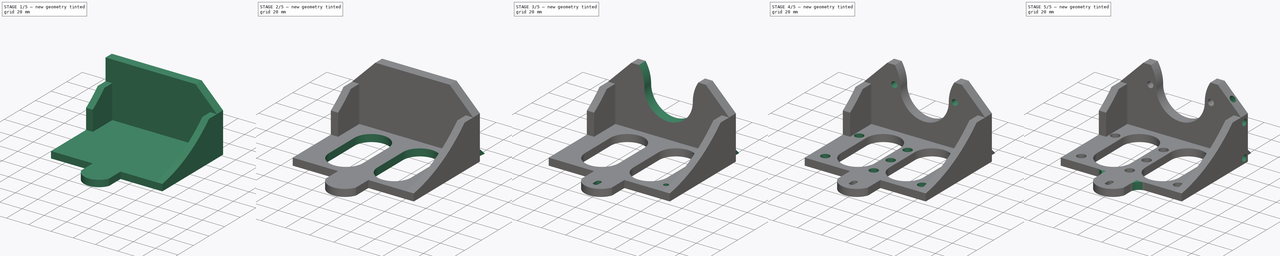
[diagram: build sequence overview — one tinted view per stage of 5, left to right]
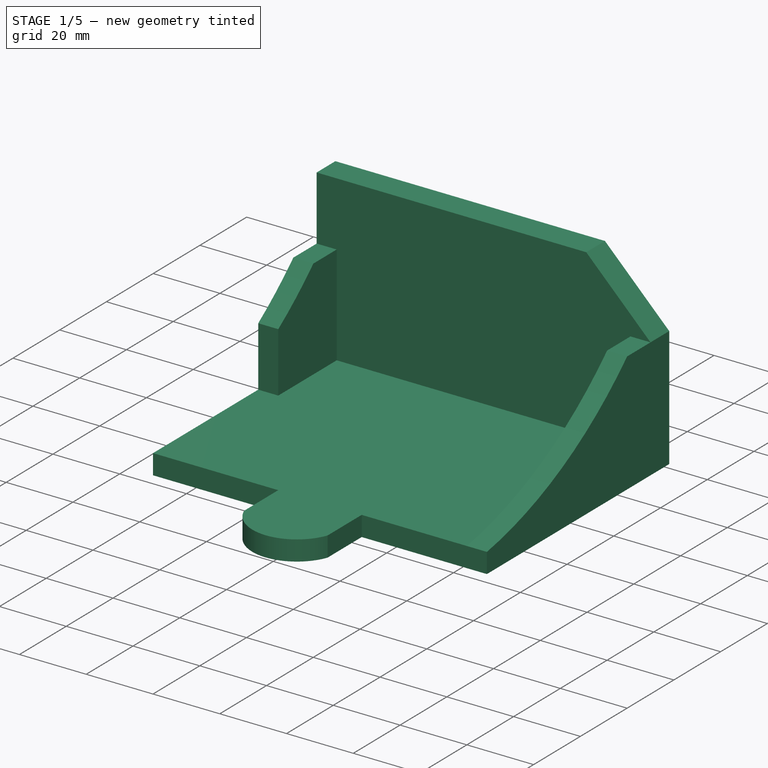
[diagram: stage 1 of 5 — iso view after this stage's code; geometry added in this stage tinted green]
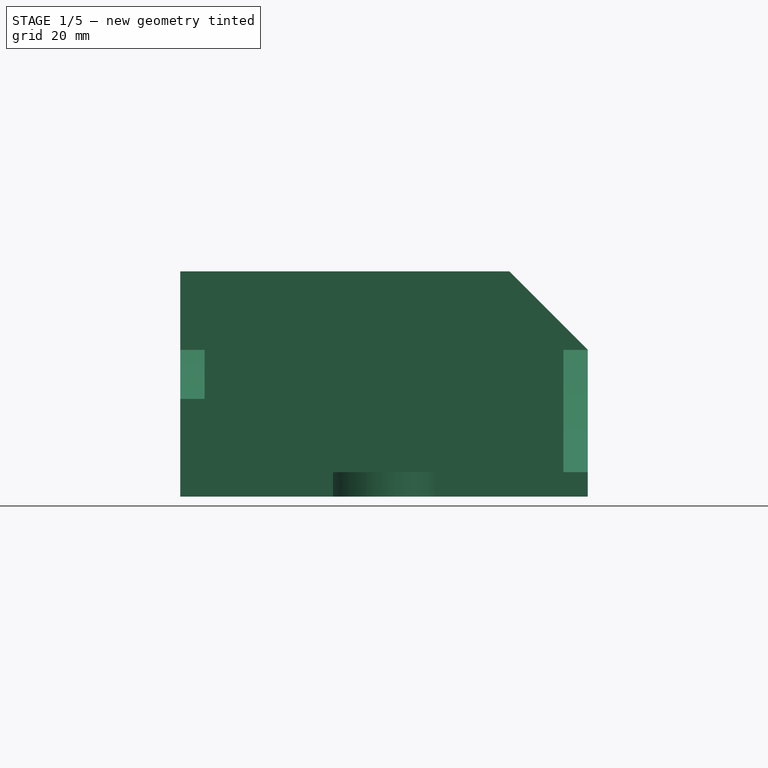
[diagram: stage 1 of 5 — front view after this stage's code; geometry added in this stage tinted green]
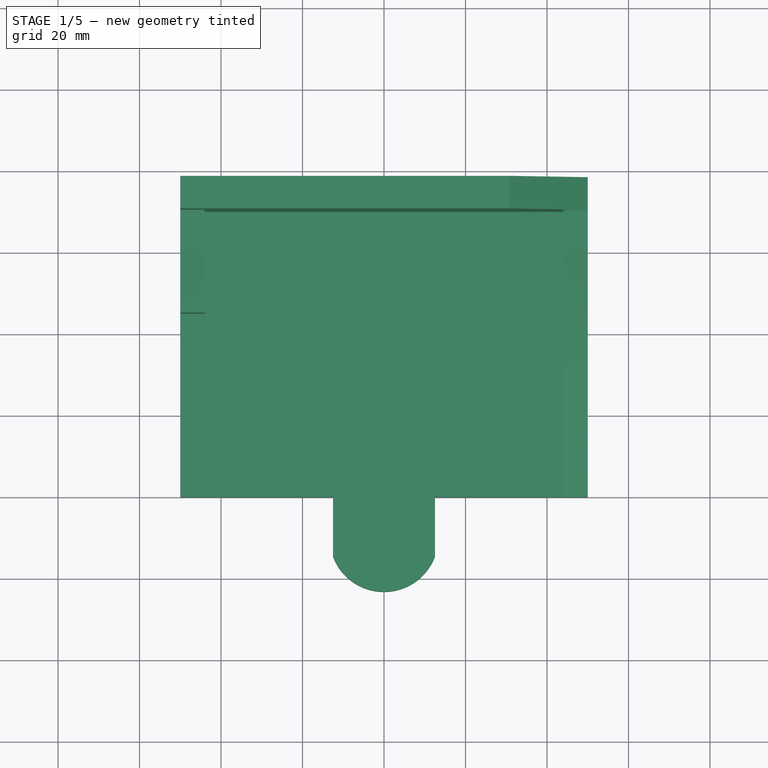
[diagram: stage 1 of 5 — top view after this stage's code; geometry added in this stage tinted green]
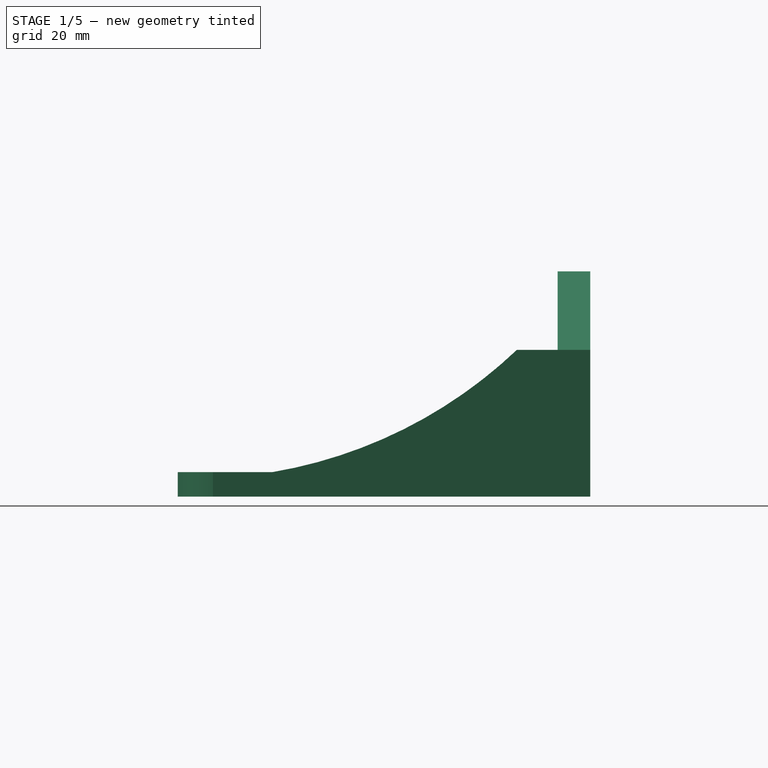
[diagram: stage 1 of 5 — right view after this stage's code; geometry added in this stage tinted green]
FCSTD DOCUMENT
Label: X_SingleExtruderMount
objects: Sketcher::SketchObject×20, PartDesign::Pocket×17, PartDesign::Mirrored×5, PartDesign::LinearPattern×4, PartDesign::Pad×3, PartDesign::MultiTransform×2, PartDesign::Fillet×2, Part::Feature×1
note: 74 computed .brp shape members not serialized (recipe doc carries the construction recipe); baked Part::Feature solids carry a one-line shape summary decoded from their .brp

FEATURE [Sketcher::SketchObject] Sketch
  sketch-geometry (4):
    g0: LineSegment StartX=-50 StartY=0 StartZ=0 EndX=50 EndY=0 EndZ=0
    g1: LineSegment StartX=50 StartY=0 StartZ=0 EndX=50 EndY=78 EndZ=0
    g2: LineSegment StartX=50 StartY=78 StartZ=0 EndX=-50 EndY=78 EndZ=0
    g3: LineSegment StartX=-50 StartY=78 StartZ=0 EndX=-50 EndY=0 EndZ=0
  constraints (12):
    c: Coincident(g0,g1)
    c: Coincident(g1,g2)
    c: Coincident(g2,g3)
    c: Coincident(g3,g0)
    c: Horizontal(g0)
    c: Horizontal(g2)
    c: Vertical(g1)
    c: Vertical(g3)
    c: Symmetric(g2,g1,g-2)
    c: PointOnObject(g0,g-1)
    c: DistanceX(g0) = 100
    c: DistanceY(g1) = 78
FEATURE [PartDesign::Pad] Pad
  Length = 55.25
  Length2 = 100
  Sketch = -> Sketch
  Type = 0
FEATURE [Sketcher::SketchObject] Sketch001
  ExternalGeometry = -> [Pad]
  Placement = pos=(0,0,0) rot=(1,0,0;1.5708rad)
  Support = -> Pad [Face1]
  sketch-geometry (8):
    g0: LineSegment StartX=44 StartY=36 StartZ=0 EndX=44 EndY=6 EndZ=0
    g1: LineSegment StartX=44 StartY=6 StartZ=0 EndX=-44 EndY=6 EndZ=0
    g2: LineSegment StartX=-44 StartY=6 StartZ=0 EndX=-44 EndY=36 EndZ=0
    g3: LineSegment StartX=-51 StartY=56.25 StartZ=0 EndX=51 EndY=56.25 EndZ=0
    g4: LineSegment StartX=51 StartY=56.25 StartZ=0 EndX=51 EndY=36 EndZ=0
    g5: LineSegment StartX=51 StartY=36 StartZ=0 EndX=44 EndY=36 EndZ=0
    g6: LineSegment StartX=-51 StartY=36 StartZ=0 EndX=-51 EndY=56.25 EndZ=0
    g7: LineSegment StartX=-44 StartY=36 StartZ=0 EndX=-51 EndY=36 EndZ=0
  constraints (23):
    c: Coincident(g0,g1)
    c: Coincident(g1,g2)
    c: Horizontal(g1)
    c: Vertical(g0)
    c: Vertical(g2)
    c: Coincident(g3,g4)
    c: Coincident(g4,g5)
    c: Coincident(g7,g6)
    c: Coincident(g6,g3)
    c: Horizontal(g3)
    c: Horizontal(g5)
    c: Vertical(g4)
    c: Vertical(g6)
    c: Coincident(g5,g0)
    c: Coincident(g7,g2)
    c: Tangent(g5,g7)
    c: Equal(g7,g5)
    c: Symmetric(g0,g1,g-2)
    c: DistanceY(g0) = 6
    c: DistanceX(g0,g-3) = 6
    c: DistanceY(g4,g-3) = -36
    c: DistanceX(g-3,g3) = 1
    c: DistanceY(g-3,g3) = 1
FEATURE [PartDesign::Pocket] Pocket
  Length = 70
  Sketch = -> Sketch001
  Type = 0
FEATURE [Sketcher::SketchObject] Sketch002
  ExternalGeometry = -> [Pocket]
  Placement = pos=(50,0,0) rot=(0.57735,0.57735,0.57735;2.0944rad)
  Support = -> Pocket [Face2]
  sketch-geometry (5):
    g0: LineSegment StartX=60 StartY=38 StartZ=0 EndX=-2 EndY=38 EndZ=0
    g1: LineSegment StartX=-2 StartY=38 StartZ=0 EndX=-2 EndY=6 EndZ=0
    g2: LineSegment StartX=-2 StartY=6 StartZ=0 EndX=0 EndY=6 EndZ=0
    g3: LineSegment StartX=60 StartY=36 StartZ=0 EndX=60 EndY=38 EndZ=0
    g4: ArcOfCircle CenterX=-19.1935 CenterY=119.387 CenterZ=0 NormalX=0 NormalY=0 NormalZ=1 Radius=115 StartAngle=4.88007 EndAngle=5.472
  constraints (16):
    c: Coincident(g0,g1)
    c: Coincident(g1,g2)
    c: Coincident(g3,g0)
    c: Horizontal(g0)
    c: Horizontal(g2)
    c: Vertical(g1)
    c: Vertical(g3)
    c: Coincident(g2,g4)
    c: Coincident(g3,g4)
    c: PointOnObject(g3,g-3)
    c: PointOnObject(g2,g-2)
    c: DistanceY(g-1,g1) = 6
    c: DistanceX(g3,g-3) = 10
    c: Equal(g2,g3)
    c: DistanceX(g-3,g0) = -2
    c: Radius(g4) = 115
FEATURE [PartDesign::Pocket] Pocket001
  Length = 7
  Sketch = -> Sketch002
  Type = 1
FEATURE [Sketcher::SketchObject] Sketch003
  ExternalGeometry = -> [Pocket001]
  Placement = pos=(-50,0,0) rot=(0.57735,-0.57735,-0.57735;2.0944rad)
  Support = -> Pocket001 [Face3]
  sketch-geometry (4):
    g0: LineSegment StartX=-45 StartY=36 StartZ=0 EndX=0 EndY=36 EndZ=0
    g1: LineSegment StartX=0 StartY=36 StartZ=0 EndX=0 EndY=6 EndZ=0
    g2: LineSegment StartX=0 StartY=6 StartZ=0 EndX=-45 EndY=6 EndZ=0
    g3: LineSegment StartX=-45 StartY=6 StartZ=0 EndX=-45 EndY=36 EndZ=0
  constraints (11):
    c: Coincident(g0,g1)
    c: Coincident(g1,g2)
    c: Coincident(g2,g3)
    c: Coincident(g3,g0)
    c: Horizontal(g0)
    c: Horizontal(g2)
    c: Vertical(g1)
    c: Vertical(g3)
    c: Coincident(g-5,g1)
    c: PointOnObject(g0,g-4)
    c: DistanceX(g2) = -45
FEATURE [PartDesign::Pocket] Pocket002
  Length = 6
  Sketch = -> Sketch003
  Type = 0
FEATURE [Sketcher::SketchObject] Sketch004
  Placement = pos=(0,0,6) rot=(0,0,1;0rad)
  Support = -> Pocket002 [Face15]
  sketch-geometry (4):
    g0: LineSegment StartX=-12.5 StartY=0 StartZ=0 EndX=12.5 EndY=0 EndZ=0
    g1: LineSegment StartX=12.5 StartY=0 StartZ=0 EndX=12.5 EndY=-14.6 EndZ=0
    g2: LineSegment StartX=-12.5 StartY=-14.6 StartZ=0 EndX=-12.5 EndY=0 EndZ=0
    g3: ArcOfCircle CenterX=0 CenterY=-9.83897 CenterZ=0 NormalX=0 NormalY=0 NormalZ=1 Radius=13.376 StartAngle=3.50551 EndAngle=5.91927
  constraints (13):
    c: Coincident(g0,g1)
    c: Coincident(g2,g0)
    c: Horizontal(g0)
    c: Vertical(g1)
    c: Vertical(g2)
    c: Symmetric(g2,g1,g-2)
    c: PointOnObject(g0,g-1)
    c: PointOnObject(g3,g-2)
    c: Coincident(g3,g2)
    c: Coincident(g3,g1)
    c: DistanceX(g0) = 25
    c: DistanceY(g1) = -14.6
    c: Radius(g3) = 13.376
FEATURE [PartDesign::Pad] Pad001
  Length = 10
  Length2 = 100
  Reversed = true
  Sketch = -> Sketch004
  Type = 3
  UpToFace = -> Pocket002 [Face4]
FEATURE [Sketcher::SketchObject] Sketch005
  ExternalGeometry = -> [Pad001]
  Placement = pos=(0,70,0) rot=(1,0,0;1.5708rad)
  Support = -> Pad001 [Face6]
  sketch-geometry (3):
    g0: LineSegment StartX=50 StartY=36 StartZ=0 EndX=29.75 EndY=56.25 EndZ=0
    g1: LineSegment StartX=29.75 StartY=56.25 StartZ=0 EndX=50 EndY=56.25 EndZ=0
    g2: LineSegment StartX=50 StartY=56.25 StartZ=0 EndX=50 EndY=36 EndZ=0
  constraints (8):
    c: Coincident(g0,g1)
    c: Horizontal(g1)
    c: Coincident(g1,g2)
    c: Coincident(g2,g0)
    c: Vertical(g2)
    c: Coincident(g0,g-3)
    c: Angle(g2,g0) = 0.785398
    c: DistanceY(g-4,g1) = 1
FEATURE [PartDesign::Pocket] Pocket003
  Length = 5
  Sketch = -> Sketch005
  Type = 1
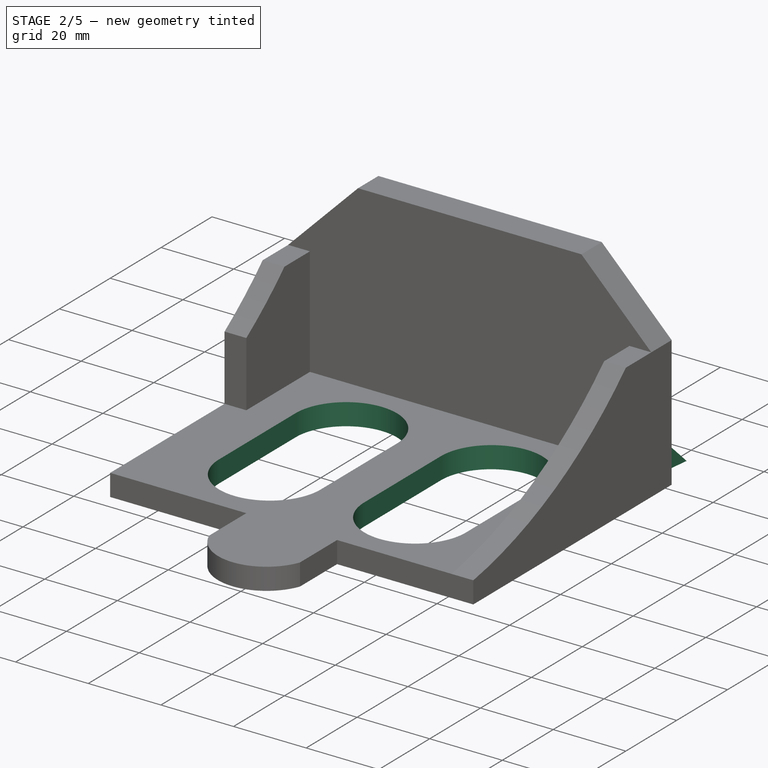
[diagram: stage 2 of 5 — iso view after this stage's code; geometry added in this stage tinted green]
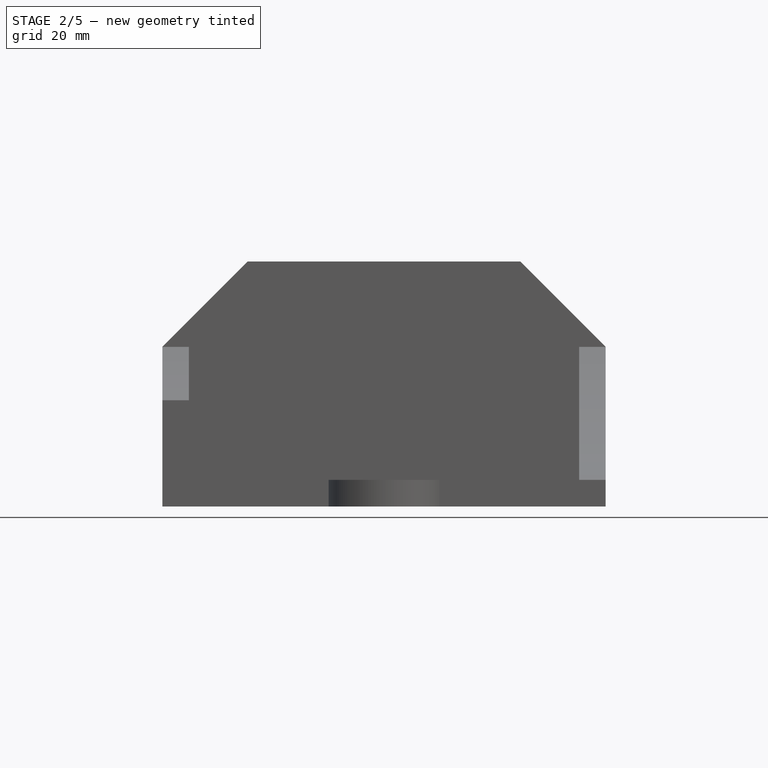
[diagram: stage 2 of 5 — front view after this stage's code; geometry added in this stage tinted green]
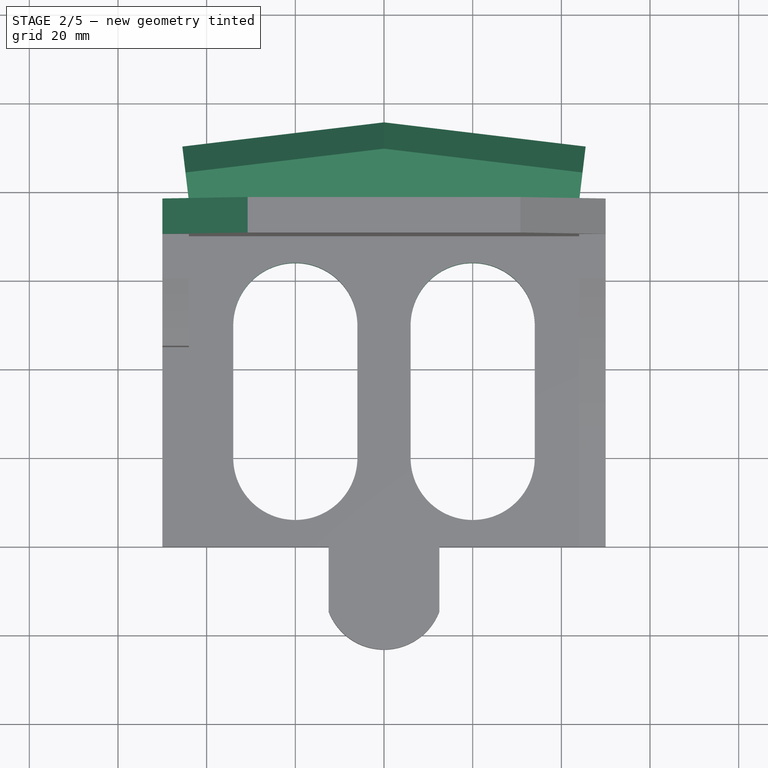
[diagram: stage 2 of 5 — top view after this stage's code; geometry added in this stage tinted green]
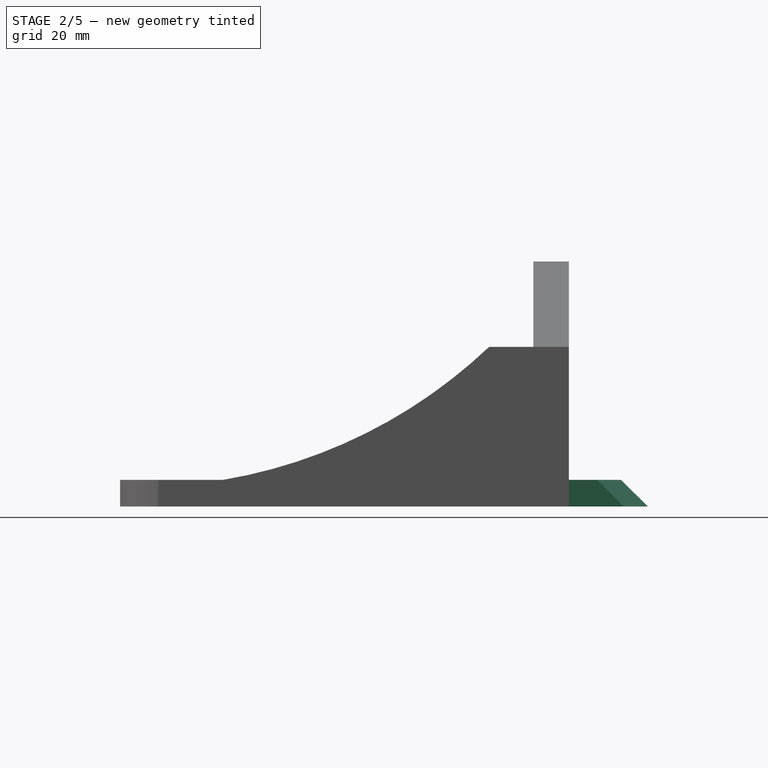
[diagram: stage 2 of 5 — right view after this stage's code; geometry added in this stage tinted green]
FEATURE [PartDesign::Mirrored] Mirrored
  Originals = -> [Pocket003]
  StdMirrorPlane = YZ
FEATURE [Sketcher::SketchObject] Sketch006
  ExternalGeometry = -> [Mirrored]
  Placement = pos=(0,0,6) rot=(0,0,1;0rad)
  Support = -> Mirrored [Face3]
  sketch-geometry (5):
    g0: LineSegment StartX=6 StartY=50 StartZ=0 EndX=6 EndY=20 EndZ=0
    g1: ArcOfCircle CenterX=20 CenterY=20 CenterZ=0 NormalX=0 NormalY=0 NormalZ=1 Radius=14 StartAngle=3.14159 EndAngle=6.28319
    g2: LineSegment StartX=34 StartY=20 StartZ=0 EndX=34 EndY=50 EndZ=0
    g3: ArcOfCircle CenterX=20 CenterY=50 CenterZ=0 NormalX=0 NormalY=0 NormalZ=1 Radius=14 StartAngle=0 EndAngle=3.14159
    g4: LineSegment [constr] StartX=20 StartY=20 StartZ=0 EndX=20 EndY=6 EndZ=0
  constraints (14):
    c: Vertical(g0)
    c: Tangent(g0,g1)
    c: Tangent(g1,g2)
    c: Tangent(g2,g3)
    c: Vertical(g2)
    c: Coincident(g3,g0)
    c: Tangent(g3,g0)
    c: Radius(g3) = 14
    c: DistanceY(g0) = -30
    c: Coincident(g4,g1)
    c: PointOnObject(g4,g1)
    c: Vertical(g4)
    c: DistanceY(g4,g-3) = -6
    c: DistanceX(g1,g-3) = 16
FEATURE [PartDesign::Pocket] Pocket004
  Length = 5
  Sketch = -> Sketch006
  Type = 1
FEATURE [PartDesign::Mirrored] Mirrored001
  Originals = -> [Pocket004]
  StdMirrorPlane = YZ
FEATURE [Sketcher::SketchObject] Sketch007
  ExternalGeometry = -> [Mirrored001]
  Placement = pos=(0,0,0) rot=(1,0,0;3.14159rad)
  Support = -> Mirrored001 [Face6]
  sketch-geometry (5):
    g0: LineSegment StartX=-44 StartY=-78 StartZ=0 EndX=44 EndY=-78 EndZ=0
    g1: LineSegment StartX=44 StartY=-78 StartZ=0 EndX=45.4811 EndY=-90.3421 EndZ=0
    g2: LineSegment StartX=45.4811 StartY=-90.3421 StartZ=0 EndX=0 EndY=-95.8 EndZ=0
    g3: LineSegment StartX=0 StartY=-95.8 StartZ=0 EndX=-45.4811 EndY=-90.3421 EndZ=0
    g4: LineSegment StartX=-45.4811 StartY=-90.3421 StartZ=0 EndX=-44 EndY=-78 EndZ=0
  constraints (13):
    c: Horizontal(g0)
    c: Coincident(g0,g1)
    c: Perpendicular(g1,g2)
    c: Coincident(g2,g3)
    c: Perpendicular(g3,g4)
    c: Coincident(g4,g0)
    c: Symmetric(g0,g0,g-2)
    c: PointOnObject(g2,g-2)
    c: PointOnObject(g-3,g0)
    c: DistanceX(g-3,g0) = 6
    c: DistanceY(g-3,g2) = -17.8
    c: Equal(g4,g1)
    c: Angle(g2,g3) = 2.90273
FEATURE [PartDesign::Pad] Pad002
  Length = 6
  Length2 = 100
  Reversed = true
  Sketch = -> Sketch007
  Type = 0
FEATURE [Sketcher::SketchObject] Sketch008
  ExternalGeometry = -> [Pad002]
  Placement = pos=(34.1479,-4.09789,0) rot=(0.623281,0.552956,0.552956;2.02687rad)
  Support = -> Pad002 [Face34]
  sketch-geometry (4):
    g0: LineSegment StartX=89.1176 StartY=6 StartZ=0 EndX=97.1176 EndY=6 EndZ=0
    g1: LineSegment StartX=97.1176 StartY=6 StartZ=0 EndX=97.1176 EndY=0 EndZ=0
    g2: LineSegment StartX=97.1176 StartY=0 StartZ=0 EndX=95.1176 EndY=0 EndZ=0
    g3: LineSegment StartX=89.1176 StartY=6 StartZ=0 EndX=95.1176 EndY=0 EndZ=0
  constraints (11):
    c: Coincident(g0,g1)
    c: Coincident(g1,g2)
    c: Horizontal(g0)
    c: Horizontal(g2)
    c: Vertical(g1)
    c: Coincident(g0,g3)
    c: Coincident(g2,g3)
    c: Coincident(g2,g-3)
    c: PointOnObject(g-3,g0)
    c: DistanceX(g2) = -2
    c: Angle(g-3,g3) = 0.785398
FEATURE [PartDesign::Pocket] Pocket005
  Length = 5
  Sketch = -> Sketch008
  Type = 1
FEATURE [PartDesign::Mirrored] Mirrored002
  Originals = -> [Pocket005]
  StdMirrorPlane = YZ
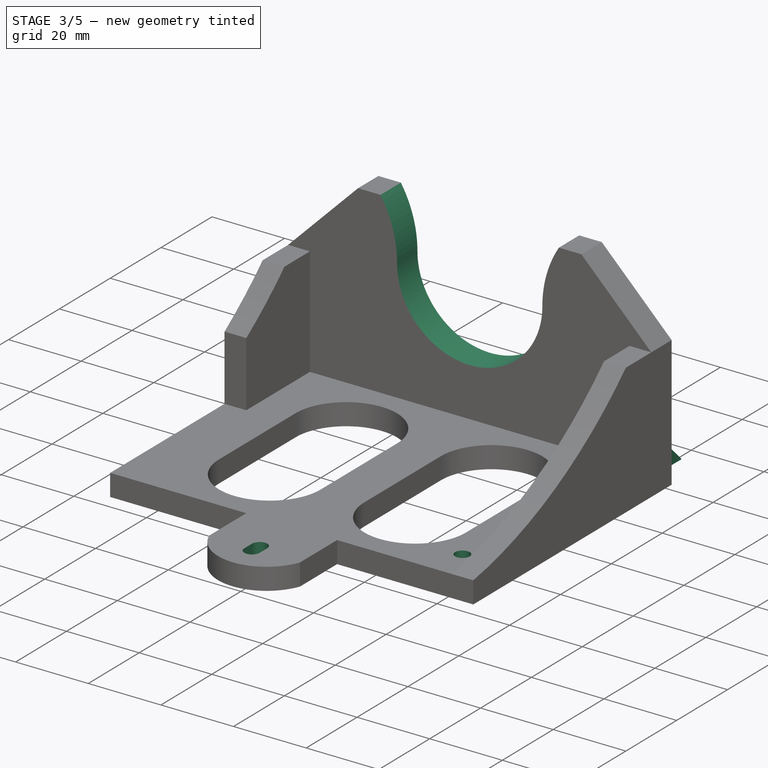
[diagram: stage 3 of 5 — iso view after this stage's code; geometry added in this stage tinted green]
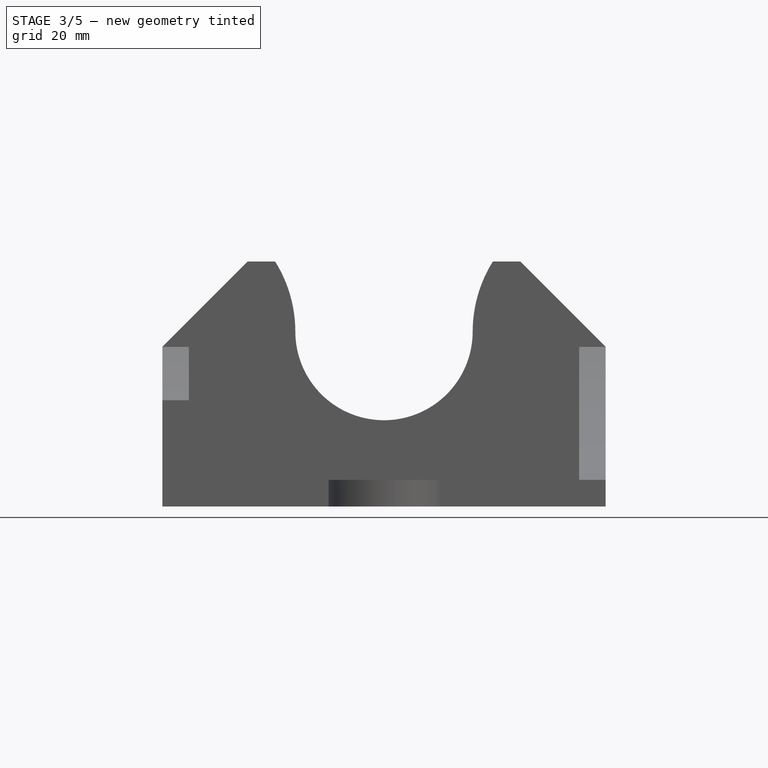
[diagram: stage 3 of 5 — front view after this stage's code; geometry added in this stage tinted green]
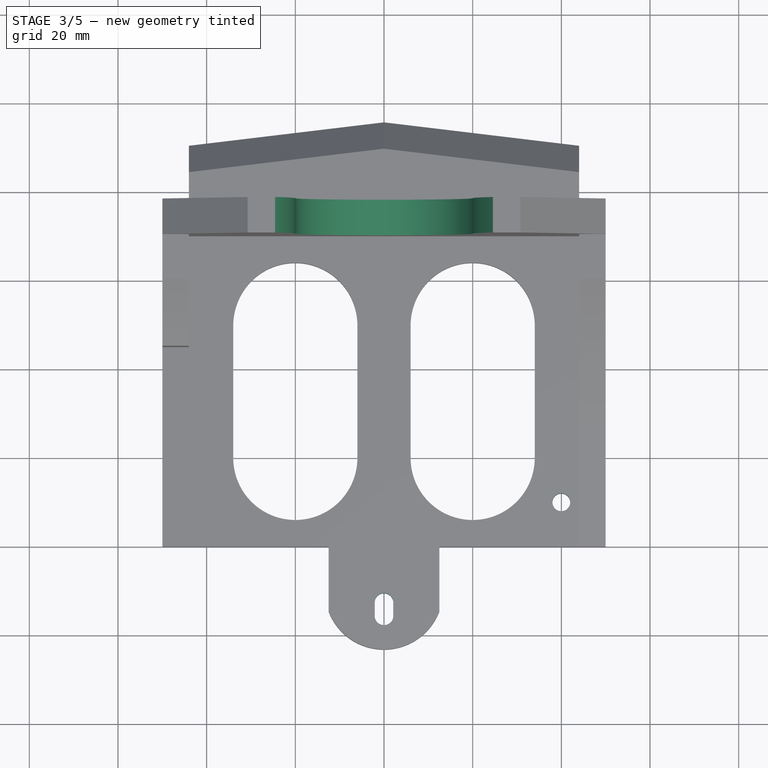
[diagram: stage 3 of 5 — top view after this stage's code; geometry added in this stage tinted green]
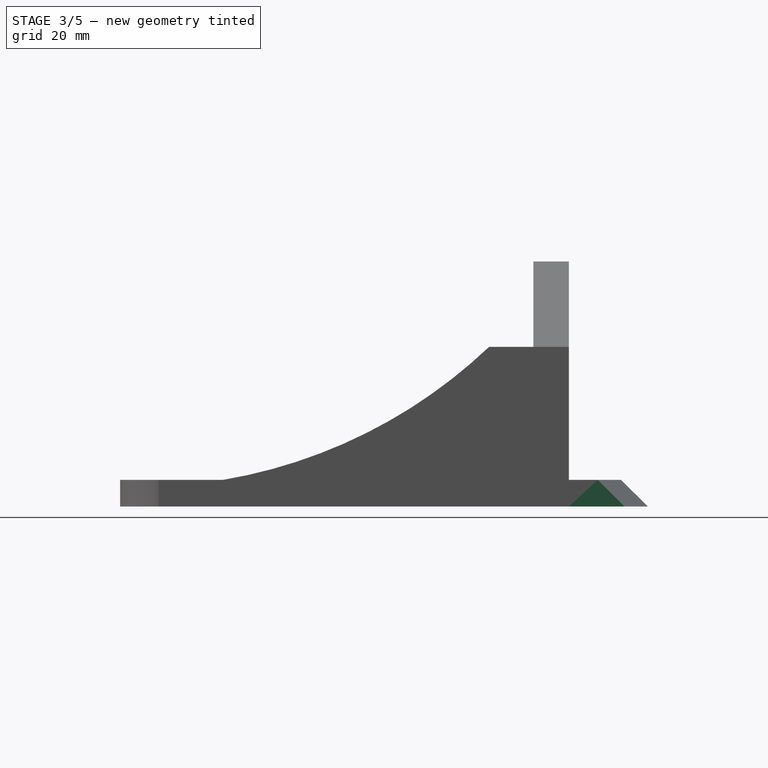
[diagram: stage 3 of 5 — right view after this stage's code; geometry added in this stage tinted green]
FEATURE [Sketcher::SketchObject] Sketch009
  ExternalGeometry = -> [Mirrored002]
  Placement = pos=(0,0,0) rot=(1,0,0;3.14159rad)
  Support = -> Mirrored002 [Face26]
  sketch-geometry (3):
    g0: LineSegment StartX=-44 StartY=-78 StartZ=0 EndX=-44 EndY=-93 EndZ=0
    g1: LineSegment StartX=-44 StartY=-93 StartZ=0 EndX=-45.8001 EndY=-93 EndZ=0
    g2: LineSegment StartX=-45.8001 StartY=-93 StartZ=0 EndX=-44 EndY=-78 EndZ=0
  constraints (8):
    c: Vertical(g0)
    c: Coincident(g0,g1)
    c: Horizontal(g1)
    c: Coincident(g1,g2)
    c: Coincident(g2,g0)
    c: Coincident(g0,g-3)
    c: DistanceY(g0) = -15
    c: PointOnObject(g-3,g2)
FEATURE [PartDesign::Pocket] Pocket006
  Length = 6
  Sketch = -> Sketch009
  Type = 0
FEATURE [PartDesign::Mirrored] Mirrored003
  Originals = -> [Pocket006]
  StdMirrorPlane = YZ
FEATURE [Sketcher::SketchObject] Sketch010
  ExternalGeometry = -> [Mirrored003]
  Placement = pos=(0,78,0) rot=(0,0.707107,0.707107;3.14159rad)
  Support = -> Mirrored003 [Face24]
  sketch-geometry (4):
    g0: ArcOfCircle CenterX=0 CenterY=39.453 CenterZ=0 NormalX=0 NormalY=0 NormalZ=1 Radius=20 StartAngle=3.14196 EndAngle=6.28282
    g1: ArcOfCircle CenterX=-49.76 CenterY=39.435 CenterZ=0 NormalX=0 NormalY=0 NormalZ=1 Radius=29.76 StartAngle=0.000360359 EndAngle=0.560273
    g2: ArcOfCircle CenterX=49.76 CenterY=39.435 CenterZ=0 NormalX=0 NormalY=0 NormalZ=1 Radius=29.76 StartAngle=2.58132 EndAngle=3.14123
    g3: LineSegment StartX=-24.55 StartY=55.25 StartZ=0 EndX=24.55 EndY=55.25 EndZ=0
  constraints (14):
    c: PointOnObject(g0,g-2)
    c: DistanceY(g-1,g0) = 39.453
    c: Radius(g0) = 20
    c: Tangent(g1,g0)
    c: Coincident(g0,g1)
    c: Coincident(g3,g1)
    c: Coincident(g3,g2)
    c: Coincident(g2,g0)
    c: Tangent(g2,g0)
    c: Symmetric(g2,g1,g-2)
    c: Equal(g2,g1)
    c: PointOnObject(g-3,g3)
    c: DistanceX(g3) = 49.1
    c: Radius(g1) = 29.76
FEATURE [PartDesign::Pocket] Pocket007
  Length = 5
  Sketch = -> Sketch010
  Type = 1
FEATURE [Sketcher::SketchObject] Sketch011
  Placement = pos=(0,0,6) rot=(0,0,1;0rad)
  Support = -> Pocket007 [Face15]
  sketch-geometry (4):
    g0: LineSegment StartX=2.1 StartY=-12.6 StartZ=0 EndX=2.1 EndY=-15.6 EndZ=0
    g1: ArcOfCircle CenterX=0 CenterY=-15.6 CenterZ=0 NormalX=0 NormalY=0 NormalZ=1 Radius=2.1 StartAngle=3.14159 EndAngle=6.28319
    g2: LineSegment StartX=-2.1 StartY=-15.6 StartZ=0 EndX=-2.1 EndY=-12.6 EndZ=0
    g3: ArcOfCircle CenterX=0 CenterY=-12.6 CenterZ=0 NormalX=0 NormalY=0 NormalZ=1 Radius=2.1 StartAngle=6.79712e-06 EndAngle=3.14159
  constraints (11):
    c: Vertical(g0)
    c: Tangent(g0,g1)
    c: Tangent(g1,g2)
    c: Tangent(g2,g3)
    c: Coincident(g3,g0)
    c: Vertical(g2)
    c: Tangent(g0,g3)
    c: PointOnObject(g1,g-2)
    c: Radius(g1) = 2.1
    c: DistanceY(g0) = -3
    c: DistanceY(g-1,g3) = -12.6
FEATURE [PartDesign::Pocket] Pocket008
  Length = 5
  Sketch = -> Sketch011
  Type = 1
FEATURE [Sketcher::SketchObject] Sketch012
  Placement = pos=(0,0,6) rot=(0,0,1;0rad)
  Support = -> Pocket008 [Face3]
  sketch-geometry (1):
    g0: Circle CenterX=40 CenterY=10 CenterZ=0 NormalX=0 NormalY=0 NormalZ=1 Radius=2
  constraints (3):
    c: Radius(g0) = 2
    c: DistanceX(g0) = 40
    c: DistanceY(g0) = 10
FEATURE [PartDesign::Pocket] Pocket009
  Length = 5
  Sketch = -> Sketch012
  Type = 1
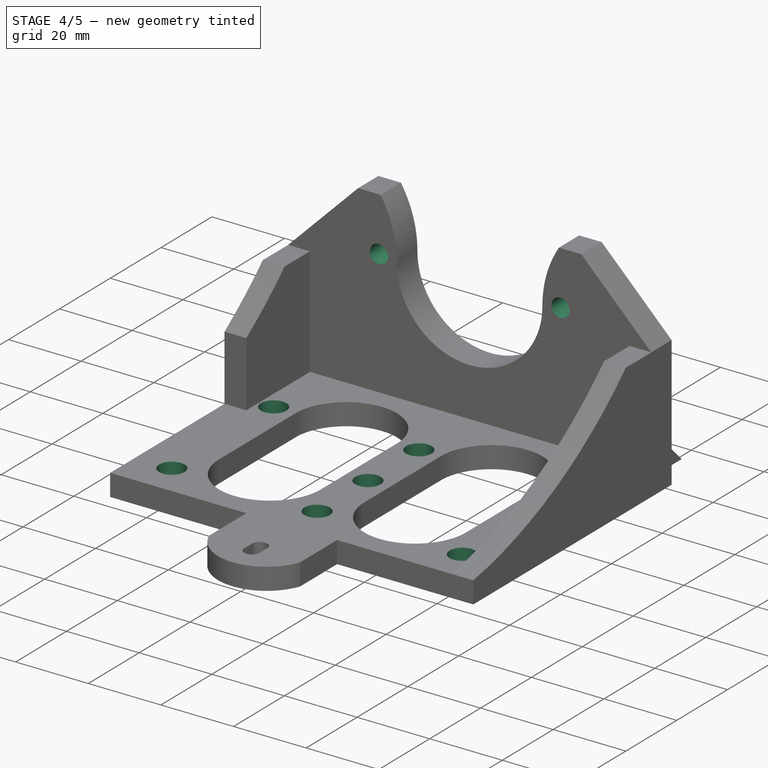
[diagram: stage 4 of 5 — iso view after this stage's code; geometry added in this stage tinted green]
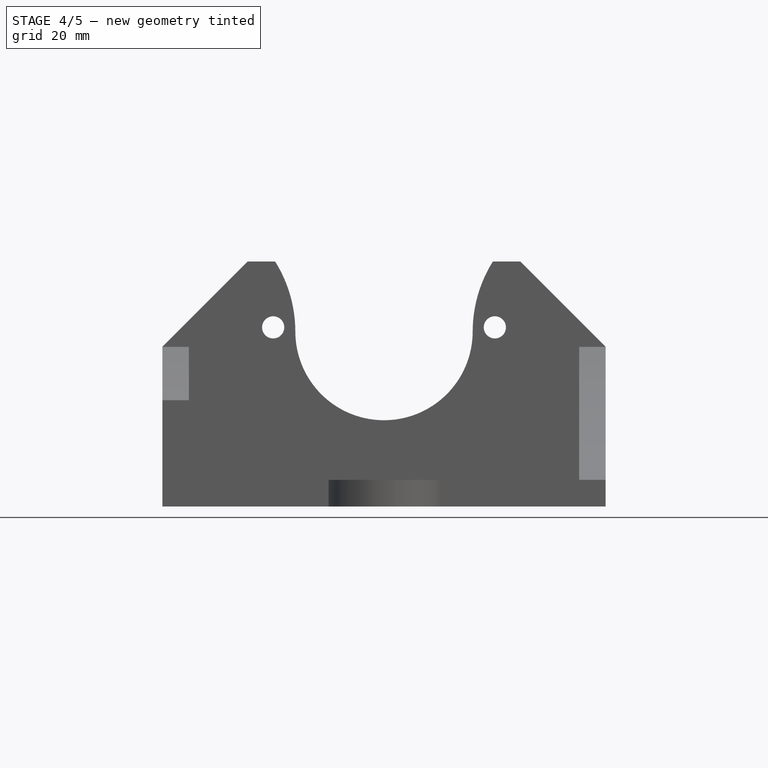
[diagram: stage 4 of 5 — front view after this stage's code; geometry added in this stage tinted green]
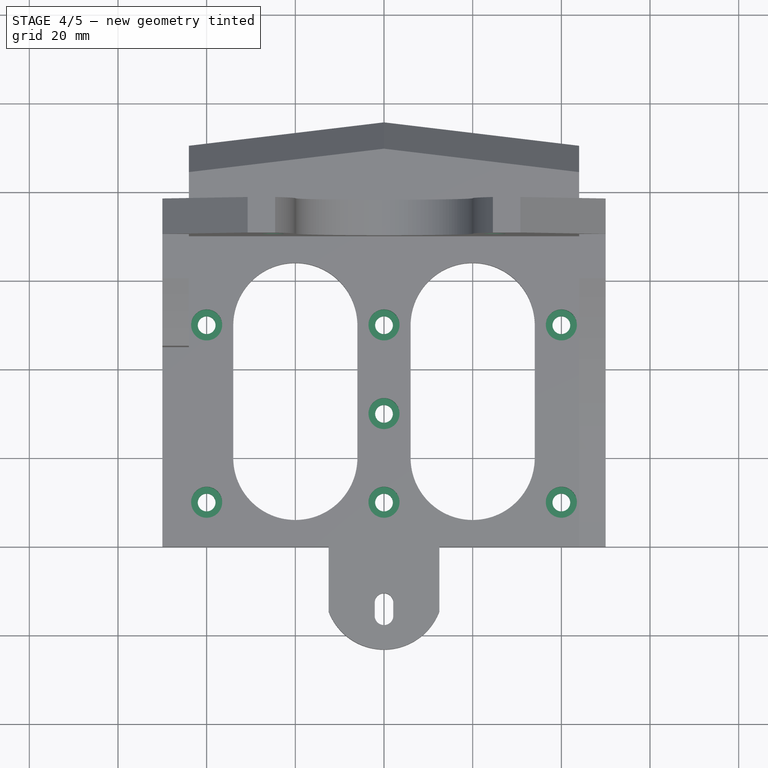
[diagram: stage 4 of 5 — top view after this stage's code; geometry added in this stage tinted green]
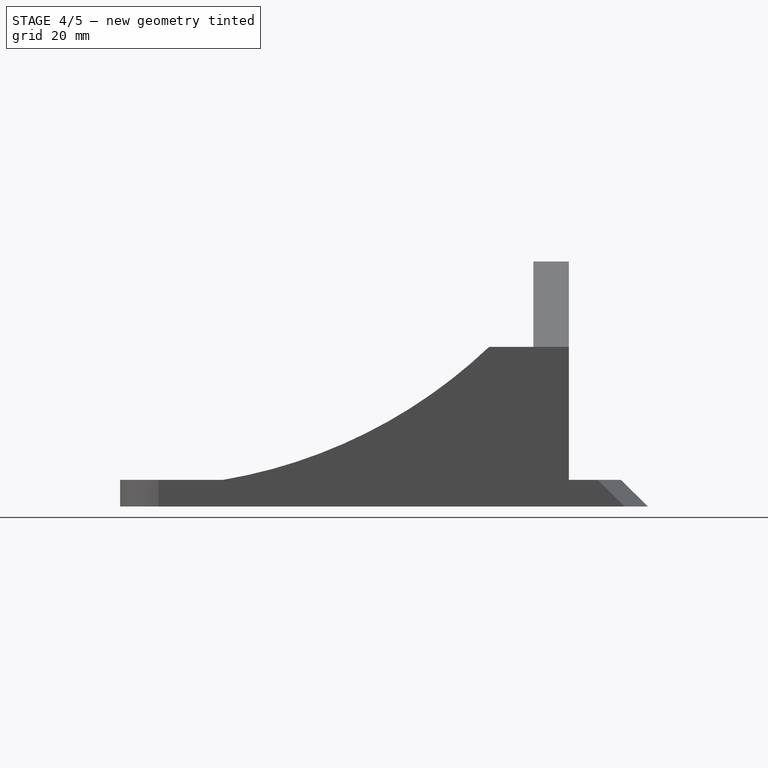
[diagram: stage 4 of 5 — right view after this stage's code; geometry added in this stage tinted green]
FEATURE [PartDesign::LinearPattern] LinearPattern
  Length = 80
  Occurrences = 3
  Reversed = true
  StdDirection = X
FEATURE [PartDesign::LinearPattern] LinearPattern001
  Direction = -> Pocket009 [Edge13]
  Length = 40
  Occurrences = 2
FEATURE [PartDesign::MultiTransform] MultiTransform
  Originals = -> [Pocket009]
  Transformations = -> [LinearPattern,LinearPattern001]
FEATURE [Sketcher::SketchObject] Sketch013
  ExternalGeometry = -> [MultiTransform]
  Placement = pos=(0,0,6) rot=(0,0,1;0rad)
  Support = -> MultiTransform [Face3]
  sketch-geometry (1):
    g0: Circle CenterX=0 CenterY=30 CenterZ=0 NormalX=0 NormalY=0 NormalZ=1 Radius=2
  constraints (2):
    c: Equal(g0,g-3)
    c: Symmetric(g-3,g-4,g0)
FEATURE [PartDesign::Pocket] Pocket010
  Length = 5
  Sketch = -> Sketch013
  Type = 1
FEATURE [Sketcher::SketchObject] Sketch014
  ExternalGeometry = -> [Pocket010]
  Placement = pos=(0,0,6) rot=(0,0,1;0rad)
  Support = -> Pocket010 [Face3]
  sketch-geometry (1):
    g0: Circle CenterX=40 CenterY=10 CenterZ=0 NormalX=0 NormalY=0 NormalZ=1 Radius=3.5
  constraints (2):
    c: Radius(g0) = 3.5
    c: Coincident(g0,g-3)
FEATURE [PartDesign::Pocket] Pocket011
  Length = 3.6
  Sketch = -> Sketch014
  Type = 0
FEATURE [PartDesign::LinearPattern] LinearPattern002
  Length = 80
  Occurrences = 3
  Reversed = true
  StdDirection = X
FEATURE [PartDesign::LinearPattern] LinearPattern003
  Direction = -> Pocket011 [Edge19]
  Length = 40
  Occurrences = 2
FEATURE [PartDesign::MultiTransform] MultiTransform001
  Originals = -> [Pocket011]
  Transformations = -> [LinearPattern002,LinearPattern003]
FEATURE [Sketcher::SketchObject] Sketch015
  ExternalGeometry = -> [MultiTransform001]
  Placement = pos=(0,0,6) rot=(0,0,1;0rad)
  Support = -> MultiTransform001 [Face3]
  sketch-geometry (1):
    g0: Circle CenterX=0 CenterY=30 CenterZ=0 NormalX=0 NormalY=0 NormalZ=1 Radius=3.5
  constraints (2):
    c: Coincident(g0,g-3)
    c: Equal(g-4,g0)
FEATURE [PartDesign::Pocket] Pocket012
  Length = 3.6
  Sketch = -> Sketch015
  Type = 0
FEATURE [Sketcher::SketchObject] Sketch016
  Placement = pos=(0,78,0) rot=(0,0.707107,0.707107;3.14159rad)
  Support = -> Pocket012 [Face31]
  sketch-geometry (2):
    g0: Circle CenterX=-25 CenterY=40.4 CenterZ=0 NormalX=0 NormalY=0 NormalZ=1 Radius=2.5
    g1: Circle CenterX=25 CenterY=40.4 CenterZ=0 NormalX=0 NormalY=0 NormalZ=1 Radius=2.5
  constraints (5):
    c: Equal(g1,g0)
    c: Radius(g1) = 2.5
    c: Symmetric(g1,g0,g-2)
    c: DistanceX(g0,g1) = 50
    c: DistanceY(g-1,g1) = 40.4
FEATURE [PartDesign::Pocket] Pocket013
  Length = 5
  Sketch = -> Sketch016
  Type = 1
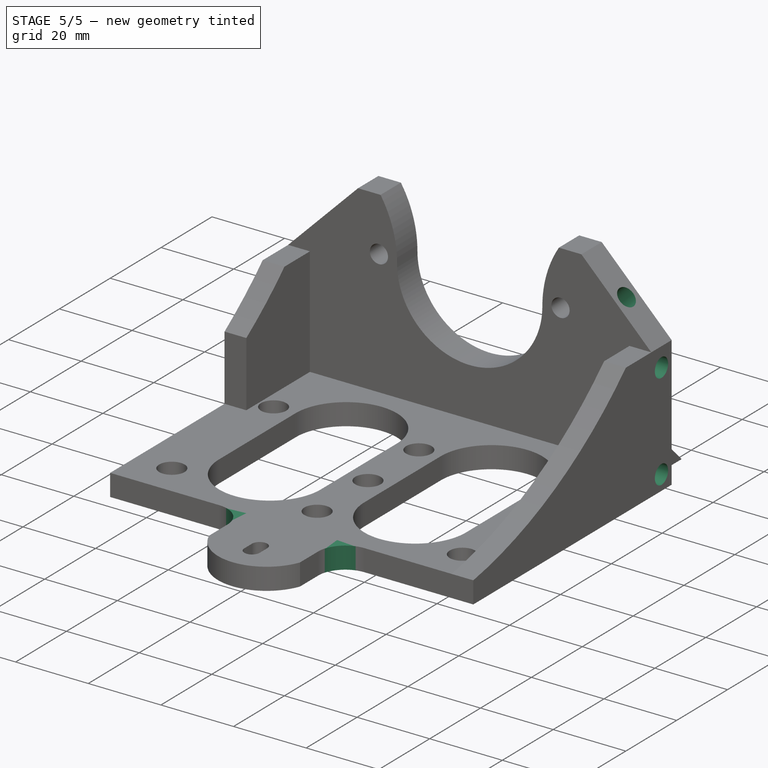
[diagram: stage 5 of 5 — iso view after this stage's code; geometry added in this stage tinted green]
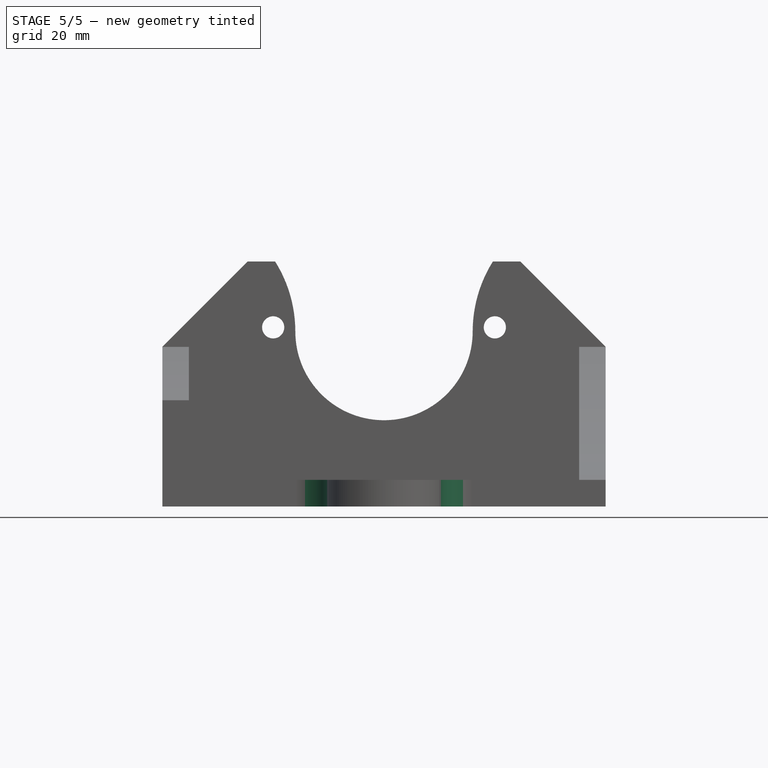
[diagram: stage 5 of 5 — front view after this stage's code; geometry added in this stage tinted green]
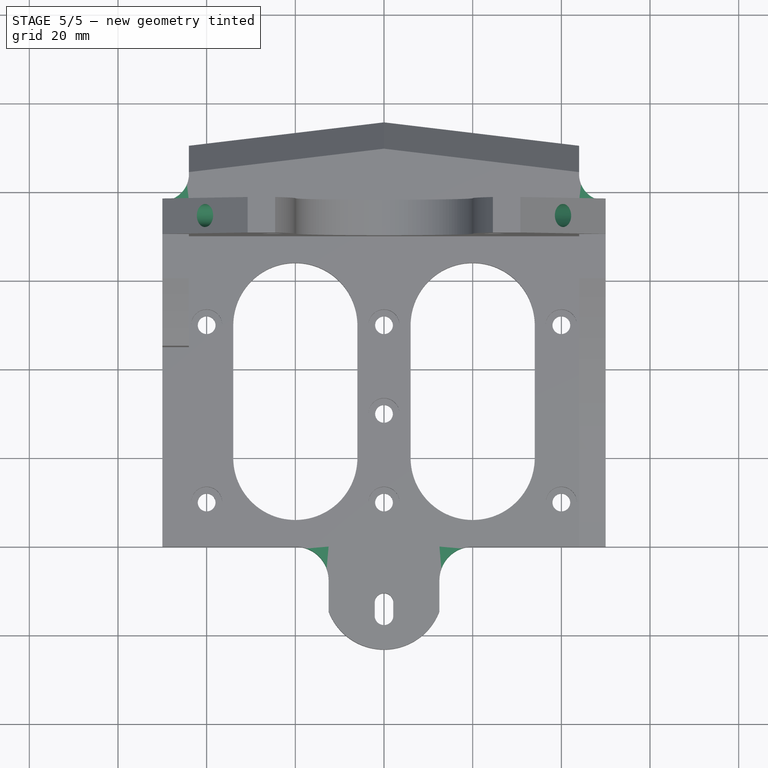
[diagram: stage 5 of 5 — top view after this stage's code; geometry added in this stage tinted green]
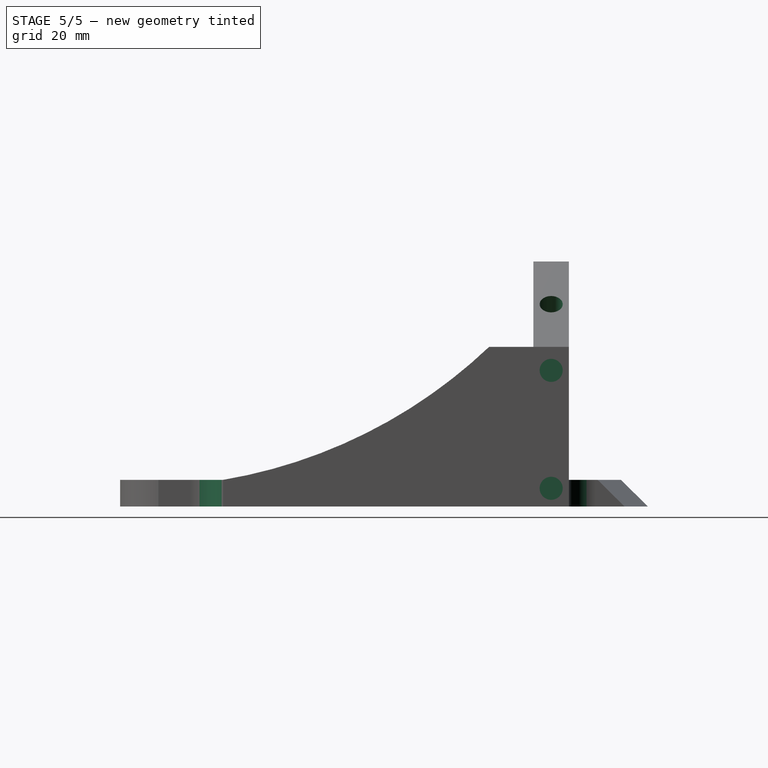
[diagram: stage 5 of 5 — right view after this stage's code; geometry added in this stage tinted green]
FEATURE [Sketcher::SketchObject] Sketch017
  ExternalGeometry = -> [Pocket013]
  Placement = pos=(43,0,43) rot=(0.357407,0.357407,0.862856;1.71777rad)
  Support = -> Pocket013 [Face59]
  sketch-geometry (2):
    g0: Circle CenterX=74 CenterY=3.71251 CenterZ=0 NormalX=0 NormalY=0 NormalZ=1 Radius=2.6
    g1: LineSegment [constr] StartX=74 StartY=3.71251 StartZ=0 EndX=74 EndY=17.3241 EndZ=0
  constraints (5):
    c: Coincident(g1,g0)
    c: Vertical(g1)
    c: Radius(g0) = 2.6
    c: Symmetric(g-4,g-4,g1)
    c: DistanceY(g-3,g0) = 13.612
FEATURE [PartDesign::Pocket] Pocket014
  Length = 6
  Sketch = -> Sketch017
  Type = 0
FEATURE [PartDesign::Mirrored] Mirrored004
  Originals = -> [Pocket014]
  StdMirrorPlane = YZ
FEATURE [Sketcher::SketchObject] Sketch018
  ExternalGeometry = -> [Mirrored004]
  Placement = pos=(50,0,0) rot=(0.57735,0.57735,0.57735;2.0944rad)
  Support = -> Mirrored004 [Face41]
  sketch-geometry (4):
    g0: Circle CenterX=74 CenterY=30.7 CenterZ=0 NormalX=0 NormalY=0 NormalZ=1 Radius=2.6
    g1: LineSegment [constr] StartX=74 StartY=30.7 StartZ=0 EndX=74 EndY=4.1 EndZ=0
    g2: Circle CenterX=74 CenterY=4.1 CenterZ=0 NormalX=0 NormalY=0 NormalZ=1 Radius=2.6
    g3: LineSegment [constr] StartX=74 StartY=30.7 StartZ=0 EndX=74 EndY=36 EndZ=0
  constraints (10):
    c: Coincident(g1,g0)
    c: Vertical(g1)
    c: Coincident(g2,g1)
    c: Equal(g2,g0)
    c: Radius(g0) = 2.6
    c: Coincident(g3,g0)
    c: Vertical(g3)
    c: Symmetric(g-3,g-3,g3)
    c: DistanceY(g-4,g1) = 4.1
    c: DistanceY(g1) = -26.6
FEATURE [PartDesign::Pocket] Pocket015
  Length = 7
  Sketch = -> Sketch018
  Type = 0
FEATURE [Sketcher::SketchObject] Sketch018001  label="Sketch019"
  ExternalGeometry = -> [Pocket015]
  Placement = pos=(-50,0,0) rot=(0.57735,-0.57735,-0.57735;2.0944rad)
  Support = -> Pocket015 [Face4]
  sketch-geometry (4):
    g0: Circle CenterX=-74 CenterY=31 CenterZ=0 NormalX=0 NormalY=0 NormalZ=1 Radius=2.6
    g1: LineSegment [constr] StartX=-74 StartY=31 StartZ=0 EndX=-74 EndY=5 EndZ=0
    g2: Circle CenterX=-74 CenterY=5 CenterZ=0 NormalX=0 NormalY=0 NormalZ=1 Radius=2.6
    g3: LineSegment [constr] StartX=-74 StartY=31 StartZ=0 EndX=-74 EndY=36 EndZ=0
  constraints (10):
    c: Coincident(g1,g0)
    c: Vertical(g1)
    c: Coincident(g2,g1)
    c: Equal(g2,g0)
    c: Radius(g0) = 2.6
    c: Coincident(g3,g0)
    c: Vertical(g3)
    c: DistanceY(g1) = -26
    c: Symmetric(g-3,g-3,g3)
    c: DistanceY(g-4,g1) = 5
FEATURE [PartDesign::Pocket] Pocket016
  Length = 7
  Sketch = -> Sketch018001
  Type = 0
FEATURE [PartDesign::Fillet] Fillet
  Base = -> Pocket016 [Edge93,Edge6]
  Radius = 7.5
FEATURE [PartDesign::Fillet] Fillet001
  Base = -> Fillet [Edge83,Edge87]
  Radius = 5.99
FEATURE [Part::Feature] Fillet001001  label="PartRefine"
  shape: bbox 100 x 119 x 55.25 mm, 81 faces (baked)
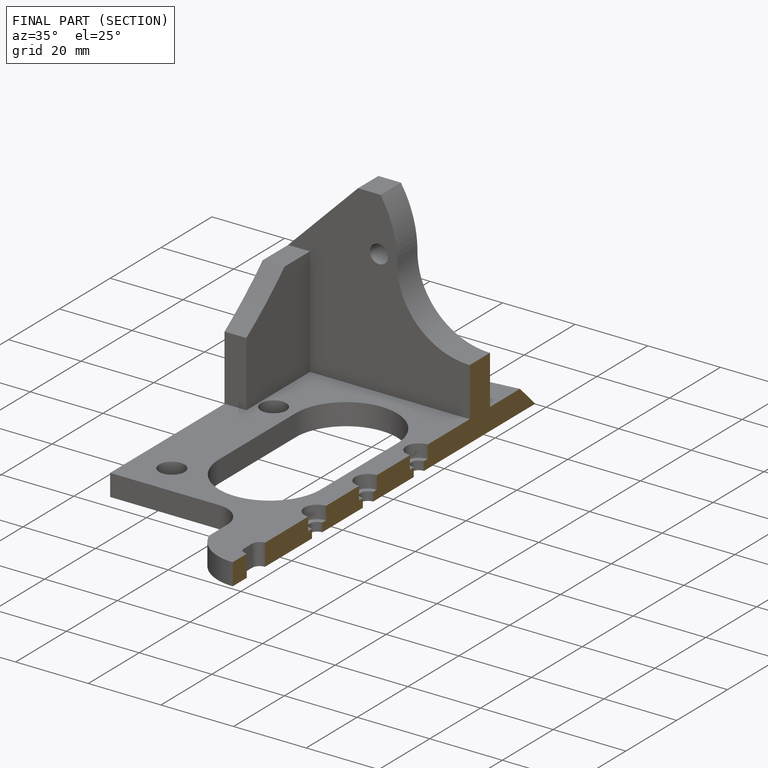
[diagram: finished part — half-section view (interior)]
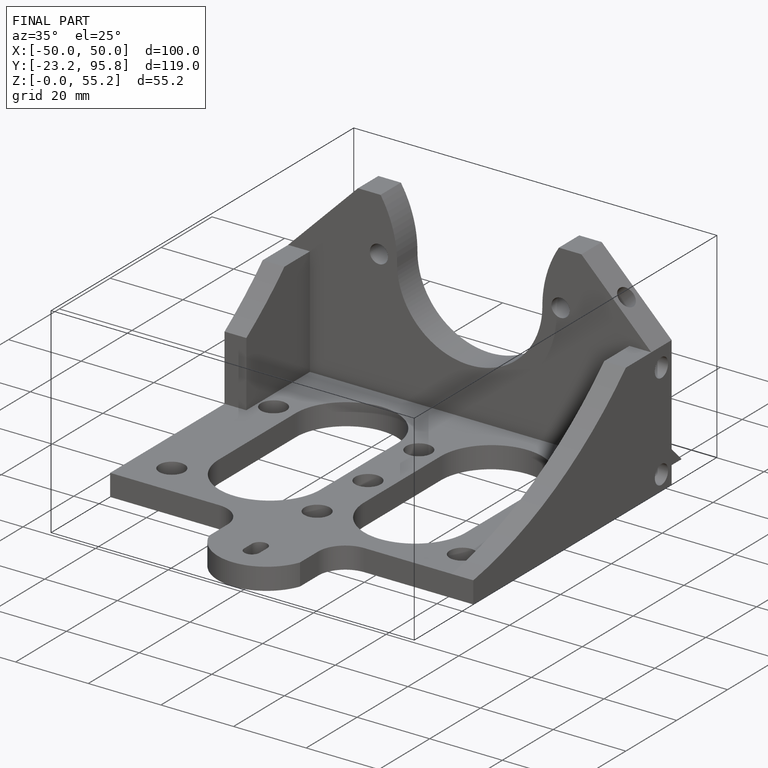
[diagram: finished part — iso view with bounding-box wireframe]
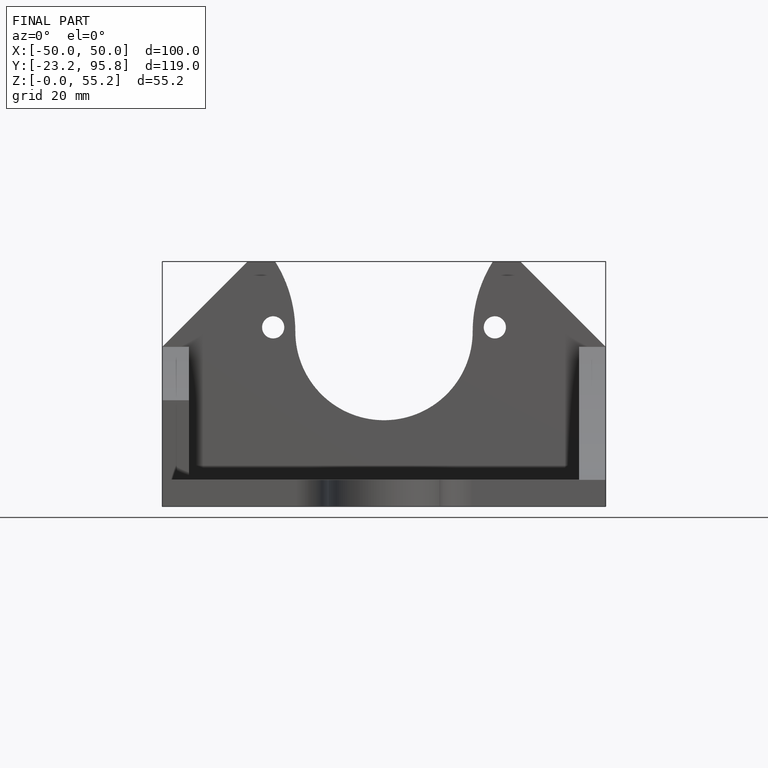
[diagram: finished part — front view with bounding-box wireframe]
